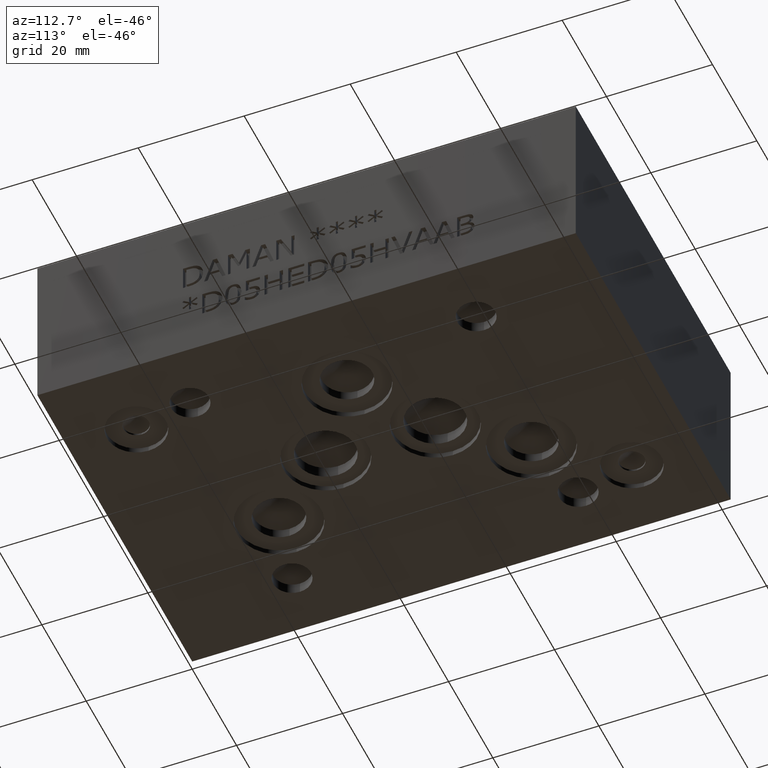
[diagram: clean part render]
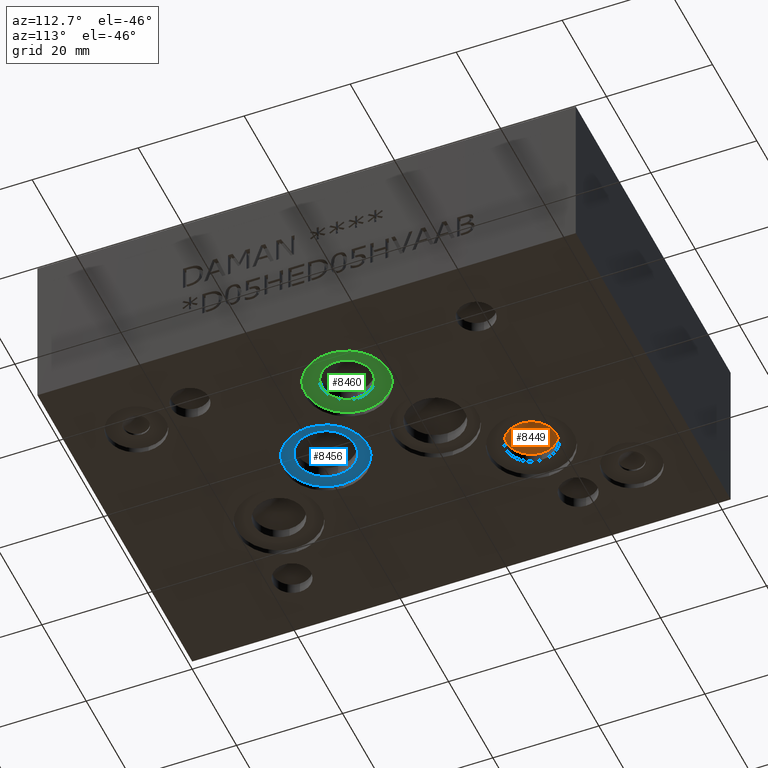
[diagram: same view with three faces highlighted in distinct colors, each labeled with its STEP entity id]
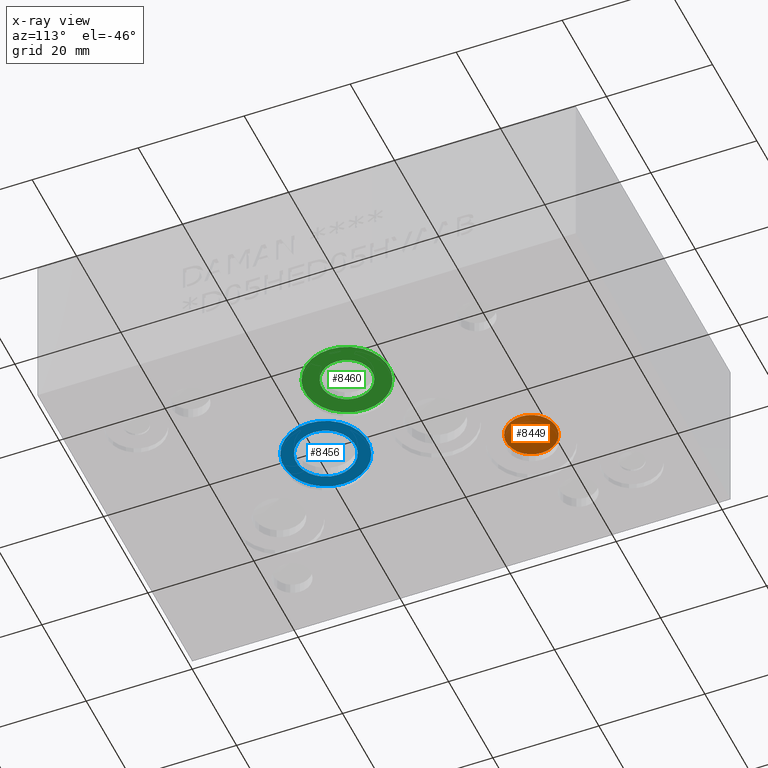
[diagram: x-ray of the same camera — body ghosted, the three highlighted faces saturated]
A machine part, auxiliary view with three faces highlighted in distinct colors.
The next image is the same camera in x-ray (body ghosted, the three faces saturated) — at least one of them is partly hidden behind the body in this view.
Their STEP definitions:

[orange] entity #8449 — the highlighted conical surface has half-angle 60 deg.
#63=CIRCLE('',#8822,4.7625);
#64=CIRCLE('',#8823,4.7625);
#156=CONICAL_SURFACE('',#8821,2.38125,1.0471975511966);
#874=FACE_OUTER_BOUND('',#1335,.T.);
#1335=EDGE_LOOP('',(#7147,#7148,#7149,#7150));
#2239=LINE('',#13963,#3113);
#3113=VECTOR('',#10405,2.38125);
#3848=VERTEX_POINT('',#13959);
#3849=VERTEX_POINT('',#13960);
#3850=VERTEX_POINT('',#13962);
#4980=EDGE_CURVE('',#3848,#3849,#63,.T.);
#4981=EDGE_CURVE('',#3849,#3850,#2239,.T.);
#4982=EDGE_CURVE('',#3849,#3848,#64,.T.);
#7147=ORIENTED_EDGE('',*,*,#4980,.T.);
#7148=ORIENTED_EDGE('',*,*,#4981,.T.);
#7149=ORIENTED_EDGE('',*,*,#4981,.F.);
#7150=ORIENTED_EDGE('',*,*,#4982,.T.);
#8449=ADVANCED_FACE('',(#874),#156,.F.);
#8821=AXIS2_PLACEMENT_3D('',#13958,#10401,#10402);
#8822=AXIS2_PLACEMENT_3D('',#13961,#10403,#10404);
#8823=AXIS2_PLACEMENT_3D('',#13964,#10406,#10407);
#10401=DIRECTION('center_axis',(0.,0.,-1.));
#10402=DIRECTION('ref_axis',(1.,0.,0.));
#10403=DIRECTION('center_axis',(0.,0.,-1.));
#10404=DIRECTION('ref_axis',(1.,0.,0.));
#10405=DIRECTION('',(0.866025403784439,-1.06057523872491E-16,0.5));
#10406=DIRECTION('center_axis',(0.,0.,-1.));
#10407=DIRECTION('ref_axis',(1.,0.,0.));
#13958=CARTESIAN_POINT('Origin',(25.40762,74.6252,4.1244453285078));
#13959=CARTESIAN_POINT('',(30.17012,74.6252,2.74963));
#13960=CARTESIAN_POINT('',(20.64512,74.6252,2.74963));
#13961=CARTESIAN_POINT('Origin',(25.40762,74.6252,2.74963));
#13962=CARTESIAN_POINT('',(25.40762,74.6252,5.49926065701559));
#13963=CARTESIAN_POINT('',(23.02637,74.6252,4.1244453285078));
#13964=CARTESIAN_POINT('Origin',(25.40762,74.6252,2.74963));

[blue] entity #8456 — the highlighted planar face has unit normal (0, 0, -1).
#62=CIRCLE('',#8820,5.5626);
#74=CIRCLE('',#8839,7.9375);
#75=CIRCLE('',#8840,7.9375);
#209=FACE_BOUND('',#1343,.T.);
#881=FACE_OUTER_BOUND('',#1342,.T.);
#1342=EDGE_LOOP('',(#7180,#7181));
#1343=EDGE_LOOP('',(#7182));
#3847=VERTEX_POINT('',#13955);
#3862=VERTEX_POINT('',#13996);
#3863=VERTEX_POINT('',#13998);
#4978=EDGE_CURVE('',#3847,#3847,#62,.T.);
#4998=EDGE_CURVE('',#3863,#3862,#74,.T.);
#4999=EDGE_CURVE('',#3862,#3863,#75,.T.);
#7180=ORIENTED_EDGE('',*,*,#4998,.T.);
#7181=ORIENTED_EDGE('',*,*,#4999,.T.);
#7182=ORIENTED_EDGE('',*,*,#4978,.T.);
#7712=PLANE('',#8841);
#8456=ADVANCED_FACE('',(#881,#209),#7712,.T.);
#8820=AXIS2_PLACEMENT_3D('',#13956,#10398,#10399);
#8839=AXIS2_PLACEMENT_3D('',#13999,#10444,#10445);
#8840=AXIS2_PLACEMENT_3D('',#14000,#10446,#10447);
#8841=AXIS2_PLACEMENT_3D('',#14001,#10448,#10449);
#10398=DIRECTION('center_axis',(0.,0.,1.));
#10399=DIRECTION('ref_axis',(1.,0.,0.));
#10444=DIRECTION('center_axis',(0.,0.,-1.));
#10445=DIRECTION('ref_axis',(1.,0.,0.));
#10446=DIRECTION('center_axis',(0.,0.,-1.));
#10447=DIRECTION('ref_axis',(1.,0.,0.));
#10448=DIRECTION('center_axis',(0.,0.,-1.));
#10449=DIRECTION('ref_axis',(1.,0.,0.));
#13955=CARTESIAN_POINT('',(30.95498,40.4876,1.016));
#13956=CARTESIAN_POINT('Origin',(36.51758,40.4876,1.016));
#13996=CARTESIAN_POINT('',(28.5877,40.4876,1.016));
#13998=CARTESIAN_POINT('',(44.4627,40.4876,1.016));
#13999=CARTESIAN_POINT('Origin',(36.5252,40.4876,1.016));
#14000=CARTESIAN_POINT('Origin',(36.5252,40.4876,1.016));
#14001=CARTESIAN_POINT('Origin',(36.5252,40.4876,1.016));

[green] entity #8460 — the highlighted planar face has unit normal (0, 0, -1).
#68=CIRCLE('',#8830,4.7625);
#82=CIRCLE('',#8851,7.9375);
#83=CIRCLE('',#8852,7.9375);
#211=FACE_BOUND('',#1349,.T.);
#885=FACE_OUTER_BOUND('',#1348,.T.);
#1348=EDGE_LOOP('',(#7198,#7199));
#1349=EDGE_LOOP('',(#7200));
#3855=VERTEX_POINT('',#13977);
#3870=VERTEX_POINT('',#14018);
#3871=VERTEX_POINT('',#14020);
#4988=EDGE_CURVE('',#3855,#3855,#68,.T.);
#5008=EDGE_CURVE('',#3871,#3870,#82,.T.);
#5009=EDGE_CURVE('',#3870,#3871,#83,.T.);
#7198=ORIENTED_EDGE('',*,*,#5008,.T.);
#7199=ORIENTED_EDGE('',*,*,#5009,.T.);
#7200=ORIENTED_EDGE('',*,*,#4988,.T.);
#7714=PLANE('',#8853);
#8460=ADVANCED_FACE('',(#885,#211),#7714,.T.);
#8830=AXIS2_PLACEMENT_3D('',#13978,#10422,#10423);
#8851=AXIS2_PLACEMENT_3D('',#14021,#10470,#10471);
#8852=AXIS2_PLACEMENT_3D('',#14022,#10472,#10473);
#8853=AXIS2_PLACEMENT_3D('',#14023,#10474,#10475);
#10422=DIRECTION('center_axis',(0.,0.,1.));
#10423=DIRECTION('ref_axis',(1.,0.,0.));
#10470=DIRECTION('center_axis',(0.,0.,-1.));
#10471=DIRECTION('ref_axis',(1.,0.,0.));
#10472=DIRECTION('center_axis',(0.,0.,-1.));
#10473=DIRECTION('ref_axis',(1.,0.,0.));
#10474=DIRECTION('center_axis',(0.,0.,-1.));
#10475=DIRECTION('ref_axis',(1.,0.,0.));
#13977=CARTESIAN_POINT('',(46.8503,50.8,1.016));
#13978=CARTESIAN_POINT('Origin',(51.6128,50.8,1.016));
#14018=CARTESIAN_POINT('',(43.6753,50.8,1.016));
#14020=CARTESIAN_POINT('',(59.5503,50.8,1.016));
#14021=CARTESIAN_POINT('Origin',(51.6128,50.8,1.016));
#14022=CARTESIAN_POINT('Origin',(51.6128,50.8,1.016));
#14023=CARTESIAN_POINT('Origin',(51.6128,50.8,1.016));